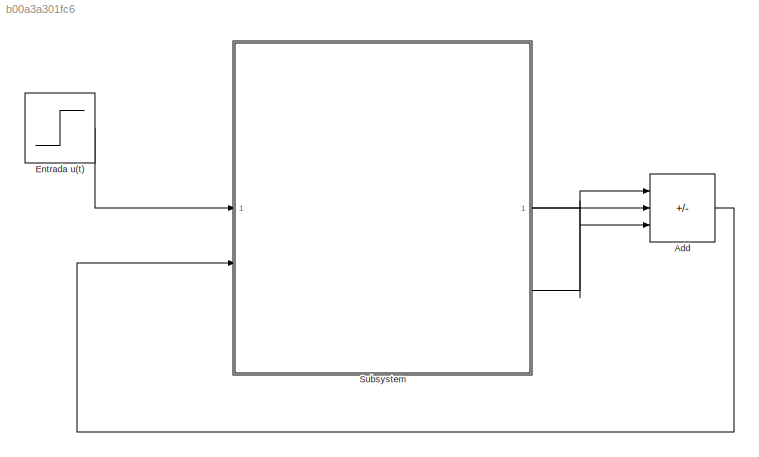
MODEL slx_b00a3a301fc6
KIND model
CONFIG AbsTol = auto
CONFIG EnableMultiTasking = off
CONFIG FixedStep = auto
CONFIG MaxStep = auto
CONFIG MinStep = auto
CONFIG RelTol = 1e-3
CONFIG SampleTimeConstraint = Unconstrained
CONFIG SolverName = VariableStepAuto
CONFIG StartTime = 0.0
CONFIG StopTime = 10.0
WORKSPACE source: mxarray member
WORKSPACE k1 = 1
WORKSPACE k2 = 1
WORKSPACE m = 1
BLOCK [Sum] Add
  IconShape = rectangular
  Inputs = +--
BLOCK [Step] Entrada u(t)
  After = 10
  SampleTime = 0
  Time = 2
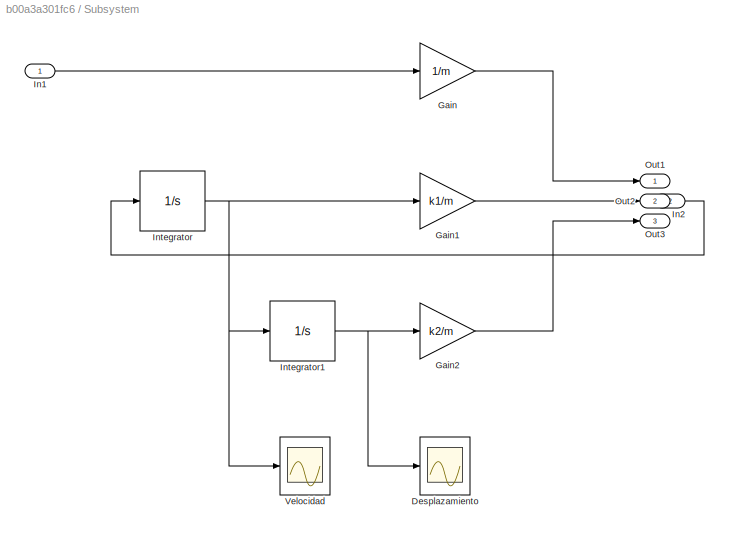
BLOCK [SubSystem] Subsystem
BLOCK [Scope] Subsystem/Desplazamiento
  Floating = off
  NumInputPorts = 1
  ScopeSpecificationString = Simulink.scopes.TimeScopeBlockCfg('CurrentConfiguration', extmgr.ConfigurationSet(extmgr.Configuration('Core','General UI',true),extmgr.Configuration('Core','Source UI',true),extmgr.Configuration('Sources','WiredSimulink',true,'DataLoggingVariableName','ScopeData1'),extmgr.Configuration('Visuals','Time Domain',true,'SerializedDisplays',{struct('MinYLimReal','-0.00816','MaxYLimReal','0.0734','YLabe...<+1484ch>
BLOCK [Gain] Subsystem/Gain
  Gain = 1/m
BLOCK [Gain] Subsystem/Gain1
  Gain = k1/m
BLOCK [Gain] Subsystem/Gain2
  Gain = k2/m
BLOCK [Inport] Subsystem/In1
BLOCK [Inport] Subsystem/In2
  Port = 2
BLOCK [Integrator] Subsystem/Integrator
BLOCK [Integrator] Subsystem/Integrator1
BLOCK [Outport] Subsystem/Out1
BLOCK [Outport] Subsystem/Out2
  Port = 2
BLOCK [Outport] Subsystem/Out3
  Port = 3
BLOCK [Scope] Subsystem/Velocidad
  Floating = off
  NumInputPorts = 1
  ScopeSpecificationString = Simulink.scopes.TimeScopeBlockCfg('CurrentConfiguration', extmgr.ConfigurationSet(extmgr.Configuration('Core','General UI',true),extmgr.Configuration('Core','Source UI',true),extmgr.Configuration('Sources','WiredSimulink',true),extmgr.Configuration('Visuals','Time Domain',true,'SerializedDisplays',{struct('MinYLimReal','-1.68412','MaxYLimReal','6.25679','YLabelReal','','MinYLimMag','0.00000','MaxY...<+1448ch>
LINE Add:1 -> Subsystem:2
LINE Entrada u(t):1 -> Subsystem:1
LINE Subsystem/Gain1:1 -> Subsystem/Out2:1
LINE Subsystem/Gain2:1 -> Subsystem/Out3:1
LINE Subsystem/Gain:1 -> Subsystem/Out1:1
LINE Subsystem/In1:1 -> Subsystem/Gain:1
LINE Subsystem/In2:1 -> Subsystem/Integrator:1
NET Subsystem/Integrator1:1 -> Subsystem/Desplazamiento:1, Subsystem/Gain2:1
NET Subsystem/Integrator:1 -> Subsystem/Gain1:1, Subsystem/Integrator1:1, Subsystem/Velocidad:1
LINE Subsystem:1 -> Add:1
LINE Subsystem:2 -> Add:2
LINE Subsystem:3 -> Add:3
note: NET lines group one-source signal fan-out (src -> all destinations, sorted); 1:1 wires keep LINE
